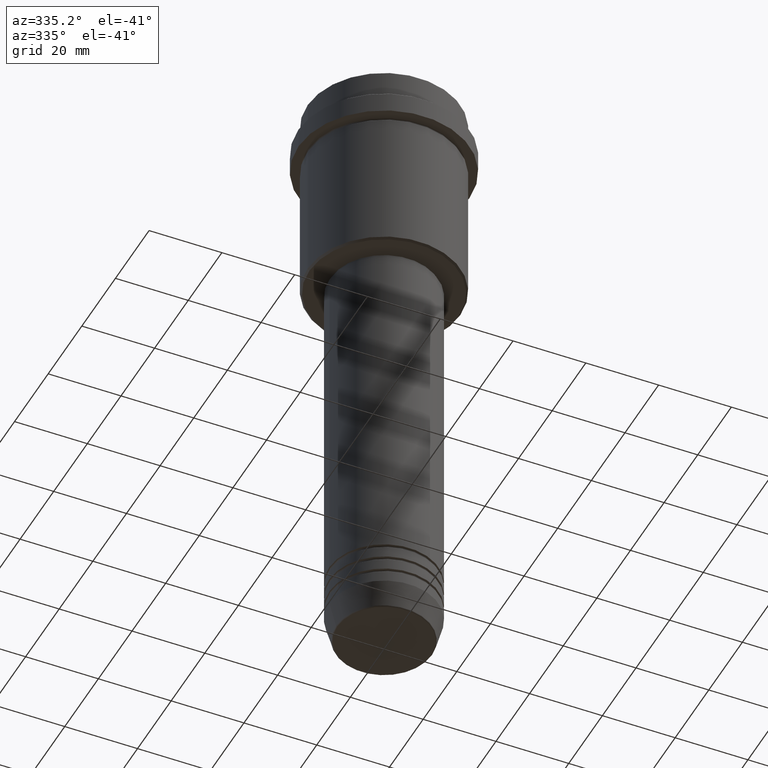
[diagram: clean part render]
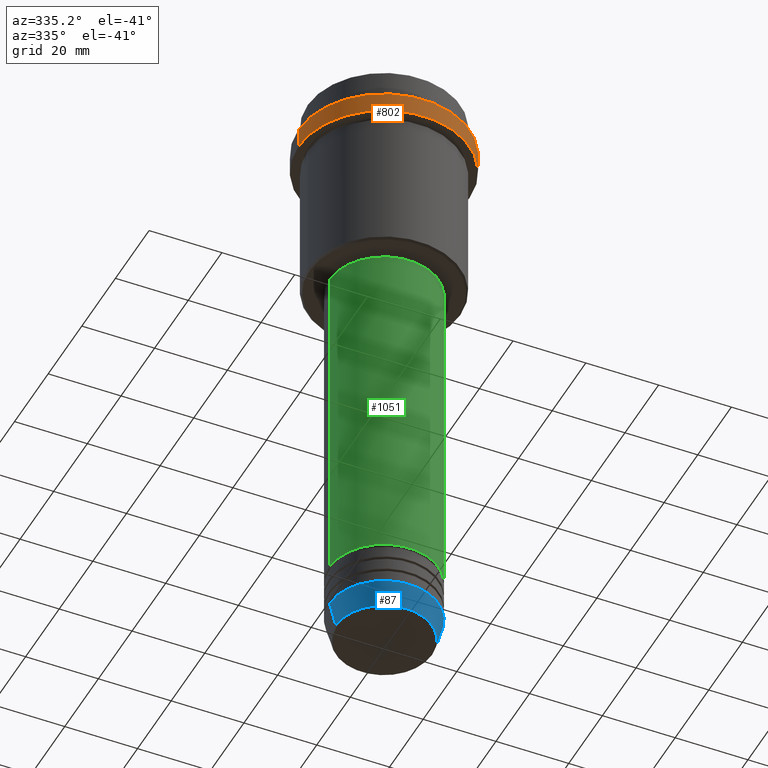
[diagram: same view with three faces highlighted in distinct colors, each labeled with its STEP entity id]
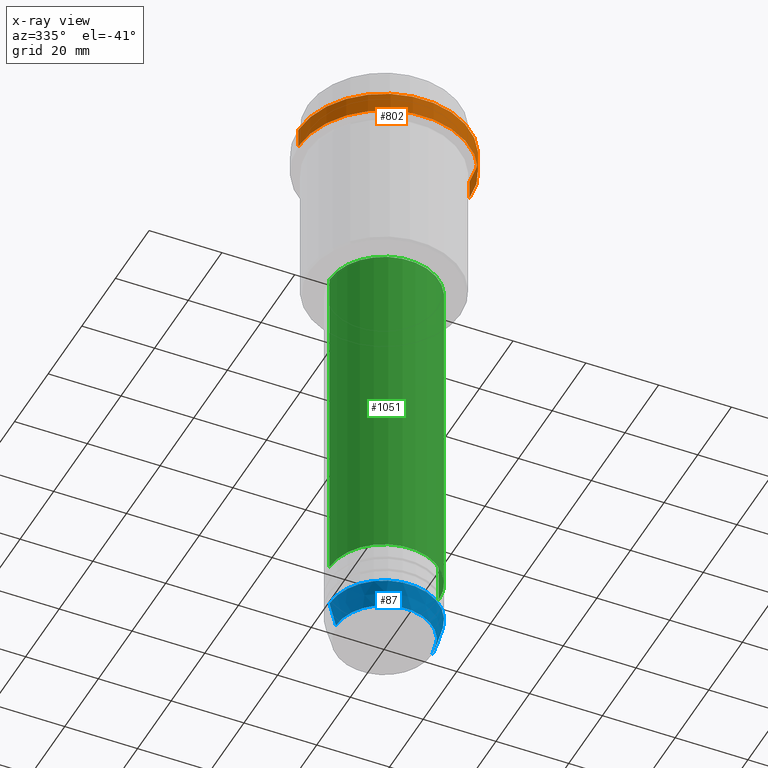
[diagram: x-ray of the same camera — body ghosted, the three highlighted faces saturated]
A machine part, auxiliary view with three faces highlighted in distinct colors.
The next image is the same camera in x-ray (body ghosted, the three faces saturated) — at least one of them is partly hidden behind the body in this view.
Their STEP definitions:

[orange] entity #802 — the highlighted cylindrical surface (partial cylindrical patch) has radius 23.5 mm, axis along (-0, -0, 1).
#25 = CARTESIAN_POINT ( 'NONE',  ( 23.50000000000000355, 0.000000000000000000, -14.99999999999998757 ) ) ;
#36 = VECTOR ( 'NONE', #1301, 1000.000000000000000 ) ;
#90 = CARTESIAN_POINT ( 'NONE',  ( 0.000000000000000000, 0.000000000000000000, 0.000000000000000000 ) ) ;
#137 = DIRECTION ( 'NONE',  ( -0.000000000000000000, -0.000000000000000000, 1.000000000000000000 ) ) ;
#176 = VERTEX_POINT ( 'NONE', #403 ) ;
#187 = LINE ( 'NONE', #405, #867 ) ;
#250 = EDGE_CURVE ( 'NONE', #872, #176, #433, .T. ) ;
#302 = DIRECTION ( 'NONE',  ( 0.000000000000000000, 0.000000000000000000, -1.000000000000000000 ) ) ;
#334 = CARTESIAN_POINT ( 'NONE',  ( -23.50000000000000000, 2.877919977996280320E-15, -9.500000000000015987 ) ) ;
#403 = CARTESIAN_POINT ( 'NONE',  ( 23.50000000000000000, 0.000000000000000000, -9.500000000000015987 ) ) ;
#405 = CARTESIAN_POINT ( 'NONE',  ( -23.50000000000000000, 2.877919977996280320E-15, 0.000000000000000000 ) ) ;
#433 = LINE ( 'NONE', #873, #36 ) ;
#458 = VERTEX_POINT ( 'NONE', #1013 ) ;
#466 = ORIENTED_EDGE ( 'NONE', *, *, #250, .T. ) ;
#488 = EDGE_CURVE ( 'NONE', #458, #872, #1319, .T. ) ;
#516 = DIRECTION ( 'NONE',  ( 1.000000000000000000, 0.000000000000000000, 0.000000000000000000 ) ) ;
#633 = FACE_OUTER_BOUND ( 'NONE', #773, .T. ) ;
#672 = AXIS2_PLACEMENT_3D ( 'NONE', #1289, #302, #516 ) ;
#751 = AXIS2_PLACEMENT_3D ( 'NONE', #90, #959, #1401 ) ;
#764 = CIRCLE ( 'NONE', #672, 23.50000000000000000 ) ;
#773 = EDGE_LOOP ( 'NONE', ( #911, #1306, #466, #1101 ) ) ;
#788 = EDGE_CURVE ( 'NONE', #458, #1260, #187, .T. ) ;
#802 = ADVANCED_FACE ( 'NONE', ( #633 ), #1069, .T. ) ;
#847 = DIRECTION ( 'NONE',  ( -0.000000000000000000, -0.000000000000000000, 1.000000000000000000 ) ) ;
#867 = VECTOR ( 'NONE', #847, 1000.000000000000000 ) ;
#872 = VERTEX_POINT ( 'NONE', #25 ) ;
#873 = CARTESIAN_POINT ( 'NONE',  ( 23.50000000000000000, 0.000000000000000000, 0.000000000000000000 ) ) ;
#908 = DIRECTION ( 'NONE',  ( 1.000000000000000000, 0.000000000000000000, 0.000000000000000000 ) ) ;
#911 = ORIENTED_EDGE ( 'NONE', *, *, #788, .F. ) ;
#959 = DIRECTION ( 'NONE',  ( -0.000000000000000000, -0.000000000000000000, 1.000000000000000000 ) ) ;
#1013 = CARTESIAN_POINT ( 'NONE',  ( -23.50000000000000711, 2.877919977996281109E-15, -14.99999999999998757 ) ) ;
#1069 = CYLINDRICAL_SURFACE ( 'NONE', #751, 23.50000000000000000 ) ;
#1101 = ORIENTED_EDGE ( 'NONE', *, *, #1149, .T. ) ;
#1149 = EDGE_CURVE ( 'NONE', #176, #1260, #764, .T. ) ;
#1260 = VERTEX_POINT ( 'NONE', #334 ) ;
#1289 = CARTESIAN_POINT ( 'NONE',  ( 0.000000000000000000, 0.000000000000000000, -9.500000000000015987 ) ) ;
#1301 = DIRECTION ( 'NONE',  ( -0.000000000000000000, -0.000000000000000000, 1.000000000000000000 ) ) ;
#1306 = ORIENTED_EDGE ( 'NONE', *, *, #488, .T. ) ;
#1319 = CIRCLE ( 'NONE', #1341, 23.50000000000000355 ) ;
#1341 = AXIS2_PLACEMENT_3D ( 'NONE', #1352, #137, #908 ) ;
#1352 = CARTESIAN_POINT ( 'NONE',  ( 0.000000000000000000, 0.000000000000000000, -14.99999999999998757 ) ) ;
#1401 = DIRECTION ( 'NONE',  ( 1.000000000000000000, 0.000000000000000000, 0.000000000000000000 ) ) ;

[blue] entity #87 — the highlighted conical surface has half-angle 15 deg.
#87 = ADVANCED_FACE ( 'NONE', ( #414 ), #811, .T. ) ;
#124 = CARTESIAN_POINT ( 'NONE',  ( -13.22365507213719660, 1.728200442216588780E-15, -169.6294095225512422 ) ) ;
#252 = DIRECTION ( 'NONE',  ( 0.2588190451025213501, 0.000000000000000000, 0.9659258262890680902 ) ) ;
#300 = VERTEX_POINT ( 'NONE', #124 ) ;
#315 = ORIENTED_EDGE ( 'NONE', *, *, #588, .F. ) ;
#318 = LINE ( 'NONE', #1395, #609 ) ;
#356 = AXIS2_PLACEMENT_3D ( 'NONE', #1160, #932, #392 ) ;
#361 = VERTEX_POINT ( 'NONE', #538 ) ;
#366 = CARTESIAN_POINT ( 'NONE',  ( 15.00000000000000000, 0.000000000000000000, -162.9999999999999716 ) ) ;
#367 = ORIENTED_EDGE ( 'NONE', *, *, #1080, .T. ) ;
#392 = DIRECTION ( 'NONE',  ( 1.000000000000000000, 0.000000000000000000, 0.000000000000000000 ) ) ;
#414 = FACE_OUTER_BOUND ( 'NONE', #960, .T. ) ;
#445 = DIRECTION ( 'NONE',  ( 1.000000000000000000, 0.000000000000000000, 0.000000000000000000 ) ) ;
#451 = DIRECTION ( 'NONE',  ( -0.000000000000000000, -0.000000000000000000, 1.000000000000000000 ) ) ;
#454 = VERTEX_POINT ( 'NONE', #1009 ) ;
#462 = AXIS2_PLACEMENT_3D ( 'NONE', #1068, #1169, #1184 ) ;
#513 = ORIENTED_EDGE ( 'NONE', *, *, #762, .F. ) ;
#538 = CARTESIAN_POINT ( 'NONE',  ( 13.22365507213719482, 0.000000000000000000, -169.6294095225512422 ) ) ;
#543 = ORIENTED_EDGE ( 'NONE', *, *, #1355, .T. ) ;
#581 = CIRCLE ( 'NONE', #1294, 13.22365507213719482 ) ;
#588 = EDGE_CURVE ( 'NONE', #1070, #454, #838, .T. ) ;
#609 = VECTOR ( 'NONE', #755, 1000.000000000000000 ) ;
#755 = DIRECTION ( 'NONE',  ( -0.2588190451025213501, 3.169619151431772337E-17, 0.9659258262890680902 ) ) ;
#762 = EDGE_CURVE ( 'NONE', #300, #1070, #318, .T. ) ;
#811 = CONICAL_SURFACE ( 'NONE', #462, 15.00000000000000000, 0.2617993877991500740 ) ;
#838 = CIRCLE ( 'NONE', #356, 15.00000000000000000 ) ;
#922 = CARTESIAN_POINT ( 'NONE',  ( -15.00000000000000000, 1.836970198721029589E-15, -162.9999999999999716 ) ) ;
#932 = DIRECTION ( 'NONE',  ( -0.000000000000000000, -0.000000000000000000, 1.000000000000000000 ) ) ;
#960 = EDGE_LOOP ( 'NONE', ( #513, #543, #367, #315 ) ) ;
#1009 = CARTESIAN_POINT ( 'NONE',  ( 15.00000000000000000, 0.000000000000000000, -162.9999999999999716 ) ) ;
#1068 = CARTESIAN_POINT ( 'NONE',  ( 0.000000000000000000, 0.000000000000000000, -162.9999999999999716 ) ) ;
#1070 = VERTEX_POINT ( 'NONE', #922 ) ;
#1080 = EDGE_CURVE ( 'NONE', #361, #454, #1258, .T. ) ;
#1099 = CARTESIAN_POINT ( 'NONE',  ( 0.000000000000000000, 0.000000000000000000, -169.6294095225512422 ) ) ;
#1160 = CARTESIAN_POINT ( 'NONE',  ( 0.000000000000000000, 0.000000000000000000, -162.9999999999999716 ) ) ;
#1169 = DIRECTION ( 'NONE',  ( -0.000000000000000000, -0.000000000000000000, 1.000000000000000000 ) ) ;
#1184 = DIRECTION ( 'NONE',  ( 1.000000000000000000, 0.000000000000000000, 0.000000000000000000 ) ) ;
#1258 = LINE ( 'NONE', #366, #1408 ) ;
#1294 = AXIS2_PLACEMENT_3D ( 'NONE', #1099, #451, #445 ) ;
#1355 = EDGE_CURVE ( 'NONE', #300, #361, #581, .T. ) ;
#1395 = CARTESIAN_POINT ( 'NONE',  ( -15.00000000000000000, 1.836970198721029589E-15, -162.9999999999999716 ) ) ;
#1408 = VECTOR ( 'NONE', #252, 1000.000000000000000 ) ;

[green] entity #1051 — the highlighted cylindrical surface (partial cylindrical patch) has radius 15 mm, axis along (-0, -0, 1).
#20 = CARTESIAN_POINT ( 'NONE',  ( -15.00000000000000000, 1.836970198721029589E-15, 0.000000000000000000 ) ) ;
#155 = CARTESIAN_POINT ( 'NONE',  ( 0.000000000000000000, 0.000000000000000000, 0.000000000000000000 ) ) ;
#161 = CARTESIAN_POINT ( 'NONE',  ( 15.00000000000000000, 0.000000000000000000, 0.000000000000000000 ) ) ;
#197 = VECTOR ( 'NONE', #1233, 1000.000000000000000 ) ;
#237 = AXIS2_PLACEMENT_3D ( 'NONE', #155, #595, #793 ) ;
#261 = ORIENTED_EDGE ( 'NONE', *, *, #1389, .T. ) ;
#291 = VECTOR ( 'NONE', #360, 1000.000000000000000 ) ;
#295 = VERTEX_POINT ( 'NONE', #1098 ) ;
#321 = ORIENTED_EDGE ( 'NONE', *, *, #977, .F. ) ;
#354 = CARTESIAN_POINT ( 'NONE',  ( 0.000000000000000000, 0.000000000000000000, -150.9999999999998579 ) ) ;
#360 = DIRECTION ( 'NONE',  ( -0.000000000000000000, -0.000000000000000000, 1.000000000000000000 ) ) ;
#386 = EDGE_CURVE ( 'NONE', #996, #1348, #1159, .T. ) ;
#448 = DIRECTION ( 'NONE',  ( 1.000000000000000000, 0.000000000000000000, 0.000000000000000000 ) ) ;
#457 = DIRECTION ( 'NONE',  ( -0.000000000000000000, -0.000000000000000000, 1.000000000000000000 ) ) ;
#465 = AXIS2_PLACEMENT_3D ( 'NONE', #1012, #457, #448 ) ;
#526 = VERTEX_POINT ( 'NONE', #780 ) ;
#577 = ORIENTED_EDGE ( 'NONE', *, *, #386, .T. ) ;
#595 = DIRECTION ( 'NONE',  ( -0.000000000000000000, -0.000000000000000000, 1.000000000000000000 ) ) ;
#675 = AXIS2_PLACEMENT_3D ( 'NONE', #354, #1231, #1221 ) ;
#768 = LINE ( 'NONE', #20, #291 ) ;
#780 = CARTESIAN_POINT ( 'NONE',  ( -15.00000000000000000, 1.836970198721029589E-15, -55.99999999999998579 ) ) ;
#793 = DIRECTION ( 'NONE',  ( 1.000000000000000000, 0.000000000000000000, 0.000000000000000000 ) ) ;
#857 = ORIENTED_EDGE ( 'NONE', *, *, #938, .F. ) ;
#917 = EDGE_LOOP ( 'NONE', ( #857, #577, #261, #321 ) ) ;
#938 = EDGE_CURVE ( 'NONE', #996, #526, #768, .T. ) ;
#977 = EDGE_CURVE ( 'NONE', #526, #295, #1137, .T. ) ;
#984 = CARTESIAN_POINT ( 'NONE',  ( -15.00000000000000000, 1.836970198721029589E-15, -150.9999999999998579 ) ) ;
#996 = VERTEX_POINT ( 'NONE', #984 ) ;
#1004 = CARTESIAN_POINT ( 'NONE',  ( 15.00000000000000000, 0.000000000000000000, -150.9999999999998579 ) ) ;
#1012 = CARTESIAN_POINT ( 'NONE',  ( 0.000000000000000000, 0.000000000000000000, -55.99999999999998579 ) ) ;
#1051 = ADVANCED_FACE ( 'NONE', ( #1374 ), #1241, .T. ) ;
#1098 = CARTESIAN_POINT ( 'NONE',  ( 15.00000000000000000, 0.000000000000000000, -55.99999999999998579 ) ) ;
#1137 = CIRCLE ( 'NONE', #465, 15.00000000000000000 ) ;
#1150 = LINE ( 'NONE', #161, #197 ) ;
#1159 = CIRCLE ( 'NONE', #675, 15.00000000000000000 ) ;
#1221 = DIRECTION ( 'NONE',  ( 1.000000000000000000, 0.000000000000000000, 0.000000000000000000 ) ) ;
#1231 = DIRECTION ( 'NONE',  ( -0.000000000000000000, -0.000000000000000000, 1.000000000000000000 ) ) ;
#1233 = DIRECTION ( 'NONE',  ( -0.000000000000000000, -0.000000000000000000, 1.000000000000000000 ) ) ;
#1241 = CYLINDRICAL_SURFACE ( 'NONE', #237, 15.00000000000000000 ) ;
#1348 = VERTEX_POINT ( 'NONE', #1004 ) ;
#1374 = FACE_OUTER_BOUND ( 'NONE', #917, .T. ) ;
#1389 = EDGE_CURVE ( 'NONE', #1348, #295, #1150, .T. ) ;